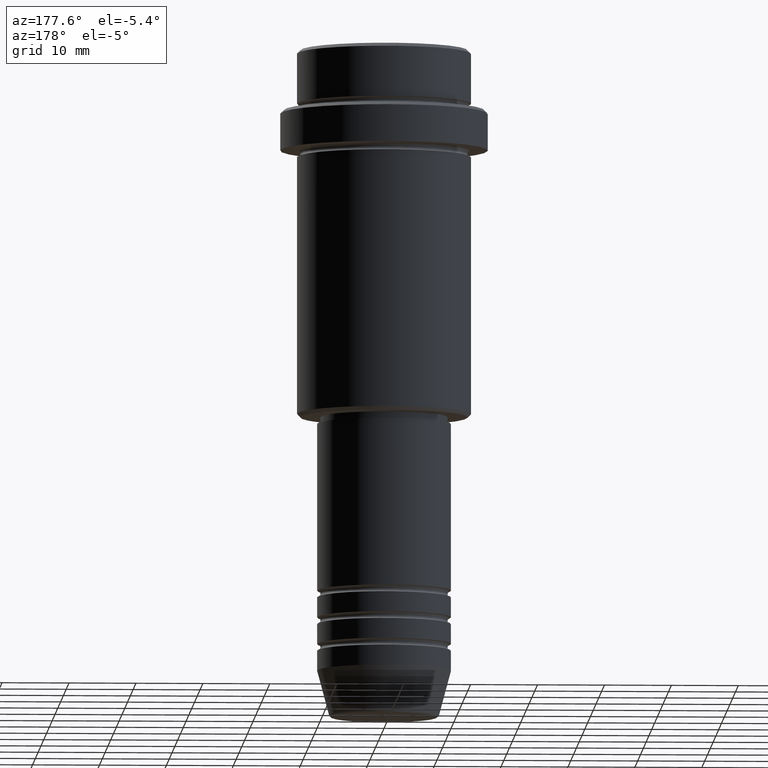
[diagram: clean part render]
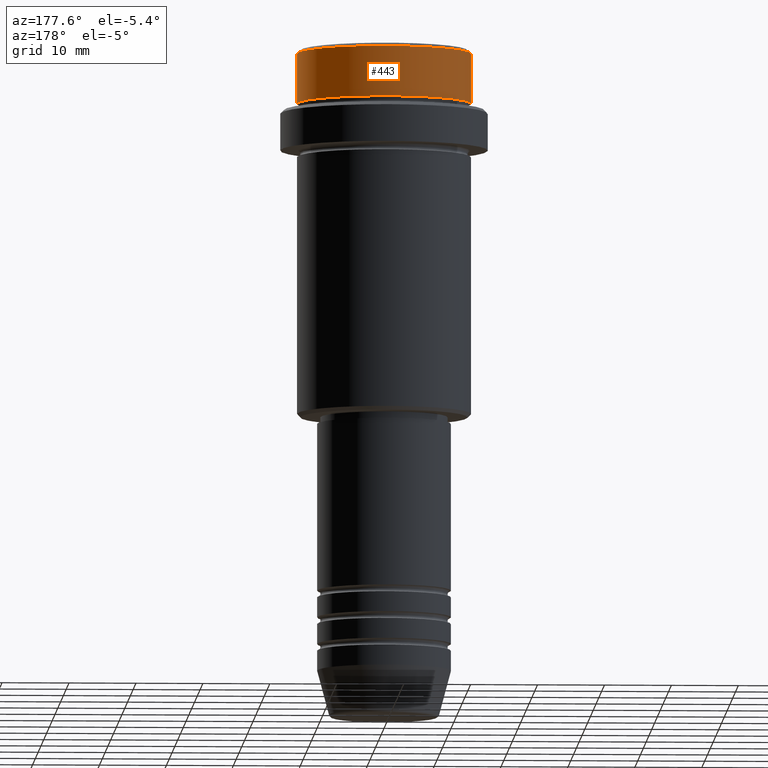
[diagram: same view with one face highlighted and labeled with its STEP entity id]
A machine part, auxiliary view. The second image highlights one B-rep face of the part: STEP entity #443.
In plain terms, the highlighted cylindrical surface (partial cylindrical patch) has radius 13 mm, axis along (-0, -0, 1).
Its self-contained STEP definition (entity closure, byte-faithful):
#81 = CARTESIAN_POINT ( 'NONE',  ( 12.99999999999999822, 0.000000000000000000, -7.999999999999998224 ) ) ;
#144 = CIRCLE ( 'NONE', #692, 12.99999999999999822 ) ;
#161 = DIRECTION ( 'NONE',  ( -0.000000000000000000, -0.000000000000000000, 1.000000000000000000 ) ) ;
#253 = ORIENTED_EDGE ( 'NONE', *, *, #258, .T. ) ;
#258 = EDGE_CURVE ( 'NONE', #352, #1312, #842, .T. ) ;
#262 = CYLINDRICAL_SURFACE ( 'NONE', #1350, 12.99999999999999822 ) ;
#271 = AXIS2_PLACEMENT_3D ( 'NONE', #1174, #1400, #935 ) ;
#277 = VERTEX_POINT ( 'NONE', #81 ) ;
#282 = CARTESIAN_POINT ( 'NONE',  ( -12.99999999999999822, 1.592040838891558898E-15, 0.000000000000000000 ) ) ;
#310 = DIRECTION ( 'NONE',  ( 1.000000000000000000, 0.000000000000000000, 0.000000000000000000 ) ) ;
#352 = VERTEX_POINT ( 'NONE', #1205 ) ;
#373 = CARTESIAN_POINT ( 'NONE',  ( 12.99999999999999822, 0.000000000000000000, 0.000000000000000000 ) ) ;
#406 = VECTOR ( 'NONE', #728, 1000.000000000000000 ) ;
#426 = EDGE_CURVE ( 'NONE', #277, #532, #602, .T. ) ;
#427 = EDGE_LOOP ( 'NONE', ( #870, #253, #1292, #970 ) ) ;
#443 = ADVANCED_FACE ( 'NONE', ( #1121 ), #262, .T. ) ;
#532 = VERTEX_POINT ( 'NONE', #1247 ) ;
#550 = CARTESIAN_POINT ( 'NONE',  ( 0.000000000000000000, 0.000000000000000000, -0.5000000000000177636 ) ) ;
#602 = LINE ( 'NONE', #373, #1371 ) ;
#612 = EDGE_CURVE ( 'NONE', #277, #352, #896, .T. ) ;
#692 = AXIS2_PLACEMENT_3D ( 'NONE', #550, #1414, #310 ) ;
#705 = DIRECTION ( 'NONE',  ( -0.000000000000000000, -0.000000000000000000, 1.000000000000000000 ) ) ;
#728 = DIRECTION ( 'NONE',  ( -0.000000000000000000, -0.000000000000000000, 1.000000000000000000 ) ) ;
#842 = LINE ( 'NONE', #282, #406 ) ;
#870 = ORIENTED_EDGE ( 'NONE', *, *, #612, .T. ) ;
#891 = CARTESIAN_POINT ( 'NONE',  ( -12.99999999999999822, 1.592040838891558898E-15, -0.5000000000000177636 ) ) ;
#896 = CIRCLE ( 'NONE', #271, 12.99999999999999822 ) ;
#935 = DIRECTION ( 'NONE',  ( 1.000000000000000000, 0.000000000000000000, 0.000000000000000000 ) ) ;
#970 = ORIENTED_EDGE ( 'NONE', *, *, #426, .F. ) ;
#1039 = CARTESIAN_POINT ( 'NONE',  ( 0.000000000000000000, 0.000000000000000000, 0.000000000000000000 ) ) ;
#1121 = FACE_OUTER_BOUND ( 'NONE', #427, .T. ) ;
#1174 = CARTESIAN_POINT ( 'NONE',  ( 0.000000000000000000, 0.000000000000000000, -7.999999999999998224 ) ) ;
#1205 = CARTESIAN_POINT ( 'NONE',  ( -12.99999999999999822, 1.592040838891558898E-15, -7.999999999999998224 ) ) ;
#1247 = CARTESIAN_POINT ( 'NONE',  ( 12.99999999999999822, 0.000000000000000000, -0.5000000000000177636 ) ) ;
#1292 = ORIENTED_EDGE ( 'NONE', *, *, #1359, .T. ) ;
#1312 = VERTEX_POINT ( 'NONE', #891 ) ;
#1350 = AXIS2_PLACEMENT_3D ( 'NONE', #1039, #161, #1351 ) ;
#1351 = DIRECTION ( 'NONE',  ( 1.000000000000000000, 0.000000000000000000, 0.000000000000000000 ) ) ;
#1359 = EDGE_CURVE ( 'NONE', #1312, #532, #144, .T. ) ;
#1371 = VECTOR ( 'NONE', #705, 1000.000000000000000 ) ;
#1400 = DIRECTION ( 'NONE',  ( -0.000000000000000000, -0.000000000000000000, 1.000000000000000000 ) ) ;
#1414 = DIRECTION ( 'NONE',  ( 0.000000000000000000, 0.000000000000000000, -1.000000000000000000 ) ) ;